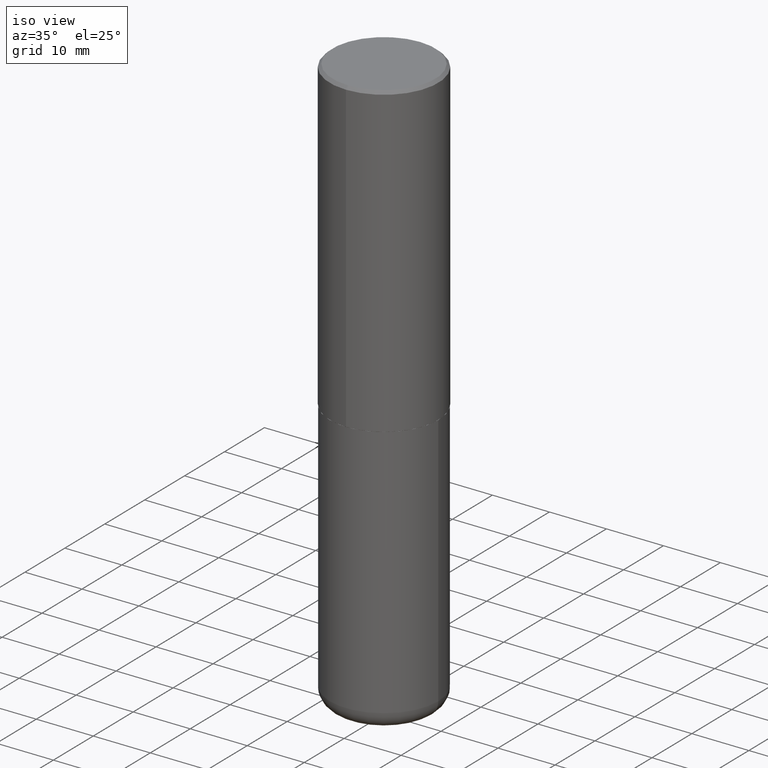
[diagram: clean part render]
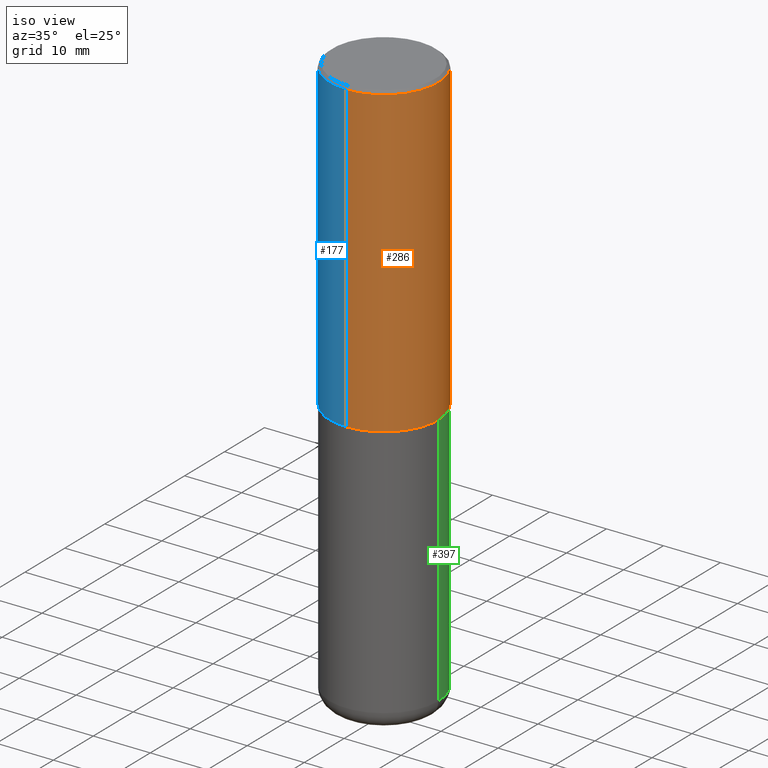
[diagram: same view with three faces highlighted in distinct colors, each labeled with its STEP entity id]
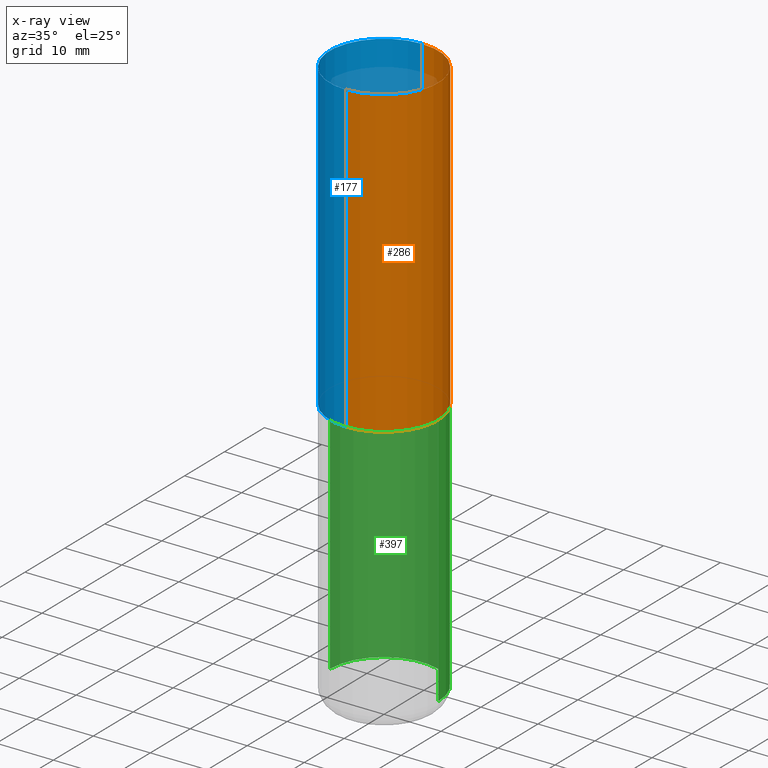
[diagram: x-ray of the same camera — body ghosted, the three highlighted faces saturated]
A machine part, iso view with three faces highlighted in distinct colors.
The next image is the same camera in x-ray (body ghosted, the three faces saturated) — at least one of them is partly hidden behind the body in this view.
Their STEP definitions:

[orange] entity #286 — the highlighted cylindrical surface (partial cylindrical patch) has radius 9.525 mm, axis along (-0, 0, 1).
#5 = CIRCLE ( 'NONE', #402, 0.3750000000000002776 ) ;
#8 = VERTEX_POINT ( 'NONE', #155 ) ;
#13 = AXIS2_PLACEMENT_3D ( 'NONE', #89, #291, #181 ) ;
#28 = VECTOR ( 'NONE', #46, 39.37007874015748143 ) ;
#46 = DIRECTION ( 'NONE',  ( -2.444599841513017620E-29, 3.492725745712018196E-15, 1.000000000000000000 ) ) ;
#51 = CIRCLE ( 'NONE', #278, 0.3750000000000001110 ) ;
#62 = FACE_OUTER_BOUND ( 'NONE', #392, .T. ) ;
#68 = DIRECTION ( 'NONE',  ( -2.444599841513017620E-29, 3.492725745712017802E-15, 1.000000000000000000 ) ) ;
#86 = ORIENTED_EDGE ( 'NONE', *, *, #265, .F. ) ;
#89 = CARTESIAN_POINT ( 'NONE',  ( 0.000000000000000000, 0.000000000000000000, 0.000000000000000000 ) ) ;
#102 = EDGE_CURVE ( 'NONE', #409, #8, #51, .T. ) ;
#103 = LINE ( 'NONE', #338, #318 ) ;
#128 = CARTESIAN_POINT ( 'NONE',  ( 2.664535259100376880E-15, 0.3750000000000002220, -1.309772154642007612E-15 ) ) ;
#138 = EDGE_CURVE ( 'NONE', #347, #8, #356, .T. ) ;
#153 = CARTESIAN_POINT ( 'NONE',  ( -2.572686749164324336E-15, -0.3750000000000001665, -0.01999999999999877570 ) ) ;
#155 = CARTESIAN_POINT ( 'NONE',  ( 2.618611004132351200E-15, 0.3750000000000000555, -0.02000000000000139513 ) ) ;
#176 = CARTESIAN_POINT ( 'NONE',  ( 2.664535259100402913E-15, 0.3749999999999928391, -2.124000000000000998 ) ) ;
#181 = DIRECTION ( 'NONE',  ( -6.982962677686266711E-15, -1.000000000000000000, 3.492725745712018196E-15 ) ) ;
#186 = ORIENTED_EDGE ( 'NONE', *, *, #319, .T. ) ;
#188 = CYLINDRICAL_SURFACE ( 'NONE', #13, 0.3750000000000002220 ) ;
#191 = DIRECTION ( 'NONE',  ( -6.982962677686266711E-15, -1.000000000000000000, 3.642463991552348591E-15 ) ) ;
#206 = CARTESIAN_POINT ( 'NONE',  ( 4.889199683026055945E-31, -6.985451491424065481E-17, -0.02000000000000008715 ) ) ;
#224 = VERTEX_POINT ( 'NONE', #253 ) ;
#225 = ORIENTED_EDGE ( 'NONE', *, *, #102, .F. ) ;
#253 = CARTESIAN_POINT ( 'NONE',  ( -2.618611004132299924E-15, -0.3750000000000077716, -2.123999999999998334 ) ) ;
#265 = EDGE_CURVE ( 'NONE', #224, #409, #103, .T. ) ;
#278 = AXIS2_PLACEMENT_3D ( 'NONE', #206, #302, #405 ) ;
#286 = ADVANCED_FACE ( 'NONE', ( #62 ), #188, .T. ) ;
#291 = DIRECTION ( 'NONE',  ( -2.444599841513017620E-29, 3.492725745712017802E-15, 1.000000000000000000 ) ) ;
#302 = DIRECTION ( 'NONE',  ( -2.444599841513017620E-29, 3.492725745712017802E-15, 1.000000000000000000 ) ) ;
#307 = DIRECTION ( 'NONE',  ( -2.444599841513017620E-29, 3.492725745712018196E-15, 1.000000000000000000 ) ) ;
#318 = VECTOR ( 'NONE', #307, 39.37007874015748143 ) ;
#319 = EDGE_CURVE ( 'NONE', #224, #347, #5, .T. ) ;
#338 = CARTESIAN_POINT ( 'NONE',  ( -2.618611004132351594E-15, -0.3750000000000002220, 1.309772154642007612E-15 ) ) ;
#347 = VERTEX_POINT ( 'NONE', #176 ) ;
#356 = LINE ( 'NONE', #128, #28 ) ;
#384 = ORIENTED_EDGE ( 'NONE', *, *, #138, .T. ) ;
#392 = EDGE_LOOP ( 'NONE', ( #186, #384, #225, #86 ) ) ;
#395 = CARTESIAN_POINT ( 'NONE',  ( 5.192330063373648592E-29, -7.418549483892325607E-15, -2.123999999999999666 ) ) ;
#402 = AXIS2_PLACEMENT_3D ( 'NONE', #395, #68, #191 ) ;
#405 = DIRECTION ( 'NONE',  ( -6.982962677686265922E-15, -1.000000000000000000, 3.494488891895535640E-15 ) ) ;
#409 = VERTEX_POINT ( 'NONE', #153 ) ;

[blue] entity #177 — the highlighted cylindrical surface (partial cylindrical patch) has radius 9.525 mm, axis along (-0, 0, 1).
#8 = VERTEX_POINT ( 'NONE', #155 ) ;
#16 = EDGE_CURVE ( 'NONE', #347, #224, #57, .T. ) ;
#19 = CARTESIAN_POINT ( 'NONE',  ( 0.000000000000000000, 0.000000000000000000, 0.000000000000000000 ) ) ;
#22 = AXIS2_PLACEMENT_3D ( 'NONE', #19, #141, #312 ) ;
#23 = EDGE_CURVE ( 'NONE', #8, #409, #415, .T. ) ;
#28 = VECTOR ( 'NONE', #46, 39.37007874015748143 ) ;
#46 = DIRECTION ( 'NONE',  ( -2.444599841513017620E-29, 3.492725745712018196E-15, 1.000000000000000000 ) ) ;
#49 = ORIENTED_EDGE ( 'NONE', *, *, #138, .F. ) ;
#57 = CIRCLE ( 'NONE', #208, 0.3750000000000002776 ) ;
#103 = LINE ( 'NONE', #338, #318 ) ;
#107 = FACE_OUTER_BOUND ( 'NONE', #194, .T. ) ;
#119 = AXIS2_PLACEMENT_3D ( 'NONE', #171, #277, #243 ) ;
#121 = ORIENTED_EDGE ( 'NONE', *, *, #16, .T. ) ;
#128 = CARTESIAN_POINT ( 'NONE',  ( 2.664535259100376880E-15, 0.3750000000000002220, -1.309772154642007612E-15 ) ) ;
#138 = EDGE_CURVE ( 'NONE', #347, #8, #356, .T. ) ;
#141 = DIRECTION ( 'NONE',  ( -2.444599841513017620E-29, 3.492725745712017802E-15, 1.000000000000000000 ) ) ;
#153 = CARTESIAN_POINT ( 'NONE',  ( -2.572686749164324336E-15, -0.3750000000000001665, -0.01999999999999877570 ) ) ;
#155 = CARTESIAN_POINT ( 'NONE',  ( 2.618611004132351200E-15, 0.3750000000000000555, -0.02000000000000139513 ) ) ;
#171 = CARTESIAN_POINT ( 'NONE',  ( 4.889199683026055945E-31, -6.985451491424065481E-17, -0.02000000000000008715 ) ) ;
#176 = CARTESIAN_POINT ( 'NONE',  ( 2.664535259100402913E-15, 0.3749999999999928391, -2.124000000000000998 ) ) ;
#177 = ADVANCED_FACE ( 'NONE', ( #107 ), #233, .T. ) ;
#194 = EDGE_LOOP ( 'NONE', ( #49, #121, #241, #255 ) ) ;
#208 = AXIS2_PLACEMENT_3D ( 'NONE', #398, #295, #229 ) ;
#224 = VERTEX_POINT ( 'NONE', #253 ) ;
#229 = DIRECTION ( 'NONE',  ( -6.982962677686266711E-15, -1.000000000000000000, 3.642463991552348591E-15 ) ) ;
#233 = CYLINDRICAL_SURFACE ( 'NONE', #22, 0.3750000000000002220 ) ;
#241 = ORIENTED_EDGE ( 'NONE', *, *, #265, .T. ) ;
#243 = DIRECTION ( 'NONE',  ( -6.982962677686265922E-15, -1.000000000000000000, 3.494488891895535640E-15 ) ) ;
#253 = CARTESIAN_POINT ( 'NONE',  ( -2.618611004132299924E-15, -0.3750000000000077716, -2.123999999999998334 ) ) ;
#255 = ORIENTED_EDGE ( 'NONE', *, *, #23, .F. ) ;
#265 = EDGE_CURVE ( 'NONE', #224, #409, #103, .T. ) ;
#277 = DIRECTION ( 'NONE',  ( -2.444599841513017620E-29, 3.492725745712017802E-15, 1.000000000000000000 ) ) ;
#295 = DIRECTION ( 'NONE',  ( -2.444599841513017620E-29, 3.492725745712017802E-15, 1.000000000000000000 ) ) ;
#307 = DIRECTION ( 'NONE',  ( -2.444599841513017620E-29, 3.492725745712018196E-15, 1.000000000000000000 ) ) ;
#312 = DIRECTION ( 'NONE',  ( -6.982962677686266711E-15, -1.000000000000000000, 3.492725745712018196E-15 ) ) ;
#318 = VECTOR ( 'NONE', #307, 39.37007874015748143 ) ;
#338 = CARTESIAN_POINT ( 'NONE',  ( -2.618611004132351594E-15, -0.3750000000000002220, 1.309772154642007612E-15 ) ) ;
#347 = VERTEX_POINT ( 'NONE', #176 ) ;
#356 = LINE ( 'NONE', #128, #28 ) ;
#398 = CARTESIAN_POINT ( 'NONE',  ( 5.192330063373648592E-29, -7.418549483892325607E-15, -2.123999999999999666 ) ) ;
#409 = VERTEX_POINT ( 'NONE', #153 ) ;
#415 = CIRCLE ( 'NONE', #119, 0.3750000000000001110 ) ;

[green] entity #397 — the highlighted cylindrical surface (partial cylindrical patch) has radius 9.525 mm, axis along (-0, 0, 1).
#3 = DIRECTION ( 'NONE',  ( -2.445468806185136877E-29, 3.491481338843145188E-15, 1.000000000000000000 ) ) ;
#12 = CARTESIAN_POINT ( 'NONE',  ( 5.196621213143415268E-29, -7.419397845041683624E-15, -2.125000000000000000 ) ) ;
#29 = EDGE_LOOP ( 'NONE', ( #331, #92, #234, #305 ) ) ;
#40 = VERTEX_POINT ( 'NONE', #327 ) ;
#43 = AXIS2_PLACEMENT_3D ( 'NONE', #44, #350, #157 ) ;
#44 = CARTESIAN_POINT ( 'NONE',  ( 9.488418967998330085E-29, -1.354694759471140570E-14, -3.880000000000000338 ) ) ;
#61 = AXIS2_PLACEMENT_3D ( 'NONE', #262, #69, #65 ) ;
#64 = VECTOR ( 'NONE', #3, 39.37007874015748143 ) ;
#65 = DIRECTION ( 'NONE',  ( 1.000000000000000000, -6.982962677686265922E-15, 4.876176775795935793E-29 ) ) ;
#67 = DIRECTION ( 'NONE',  ( -2.445468806185136877E-29, 3.491481338843145188E-15, 1.000000000000000000 ) ) ;
#69 = DIRECTION ( 'NONE',  ( -2.445468806185136597E-29, 3.491481338843145583E-15, 1.000000000000000000 ) ) ;
#82 = DIRECTION ( 'NONE',  ( -2.445468806185136597E-29, 3.491481338843145583E-15, 1.000000000000000000 ) ) ;
#91 = CARTESIAN_POINT ( 'NONE',  ( 0.3750000000000001110, -1.616555859884375729E-14, -3.880000000000000338 ) ) ;
#92 = ORIENTED_EDGE ( 'NONE', *, *, #187, .T. ) ;
#117 = CARTESIAN_POINT ( 'NONE',  ( -0.3750000000000000555, 2.664535259100376091E-15, -1.844600658845589598E-29 ) ) ;
#126 = CARTESIAN_POINT ( 'NONE',  ( 0.3750000000000000555, -2.618611004132350016E-15, 1.828566290923476203E-29 ) ) ;
#127 = CARTESIAN_POINT ( 'NONE',  ( -0.3750000000000001110, -1.088241233561102684E-14, -3.880000000000000338 ) ) ;
#139 = EDGE_CURVE ( 'NONE', #40, #217, #363, .T. ) ;
#157 = DIRECTION ( 'NONE',  ( 1.000000000000000000, -6.982962677686266711E-15, 0.000000000000000000 ) ) ;
#187 = EDGE_CURVE ( 'NONE', #386, #217, #385, .T. ) ;
#217 = VERTEX_POINT ( 'NONE', #303 ) ;
#234 = ORIENTED_EDGE ( 'NONE', *, *, #139, .F. ) ;
#262 = CARTESIAN_POINT ( 'NONE',  ( 0.000000000000000000, 0.000000000000000000, 0.000000000000000000 ) ) ;
#272 = DIRECTION ( 'NONE',  ( 1.000000000000000000, -6.982962677686266711E-15, 0.000000000000000000 ) ) ;
#284 = LINE ( 'NONE', #126, #64 ) ;
#303 = CARTESIAN_POINT ( 'NONE',  ( -0.3750000000000000555, -7.818637460776168963E-15, -2.125000000000000000 ) ) ;
#305 = ORIENTED_EDGE ( 'NONE', *, *, #320, .F. ) ;
#320 = EDGE_CURVE ( 'NONE', #393, #40, #284, .T. ) ;
#327 = CARTESIAN_POINT ( 'NONE',  ( 0.3750000000000000555, -1.003800884917403364E-14, -2.125000000000000000 ) ) ;
#331 = ORIENTED_EDGE ( 'NONE', *, *, #383, .T. ) ;
#345 = AXIS2_PLACEMENT_3D ( 'NONE', #12, #82, #272 ) ;
#350 = DIRECTION ( 'NONE',  ( -2.445468806185136597E-29, 3.491481338843145583E-15, 1.000000000000000000 ) ) ;
#353 = VECTOR ( 'NONE', #67, 39.37007874015748143 ) ;
#354 = CYLINDRICAL_SURFACE ( 'NONE', #61, 0.3750000000000000555 ) ;
#363 = CIRCLE ( 'NONE', #345, 0.3750000000000000555 ) ;
#376 = CIRCLE ( 'NONE', #43, 0.3750000000000000555 ) ;
#383 = EDGE_CURVE ( 'NONE', #393, #386, #376, .T. ) ;
#385 = LINE ( 'NONE', #117, #353 ) ;
#386 = VERTEX_POINT ( 'NONE', #127 ) ;
#391 = FACE_OUTER_BOUND ( 'NONE', #29, .T. ) ;
#393 = VERTEX_POINT ( 'NONE', #91 ) ;
#397 = ADVANCED_FACE ( 'NONE', ( #391 ), #354, .T. ) ;